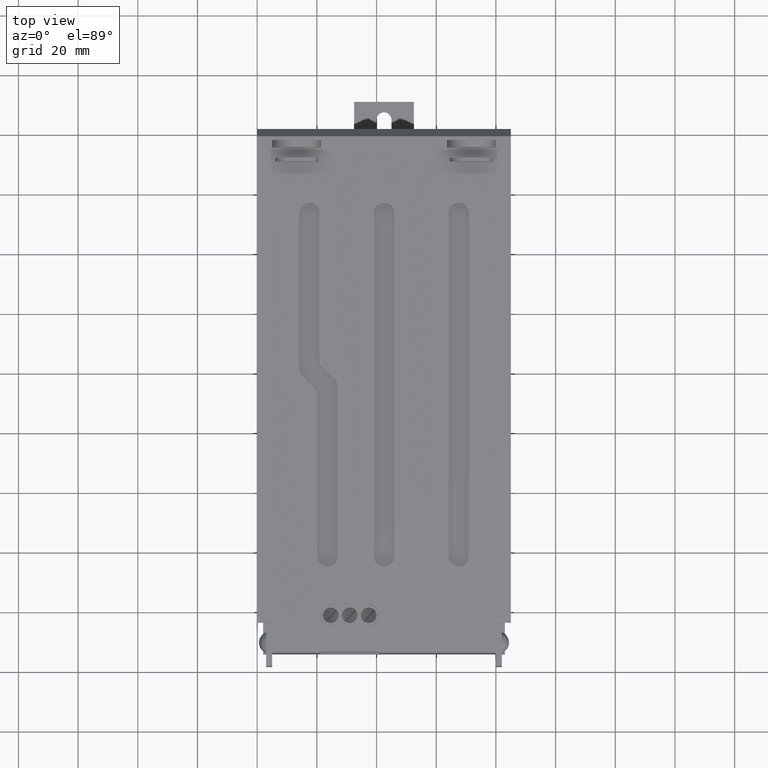
[diagram: clean part render]
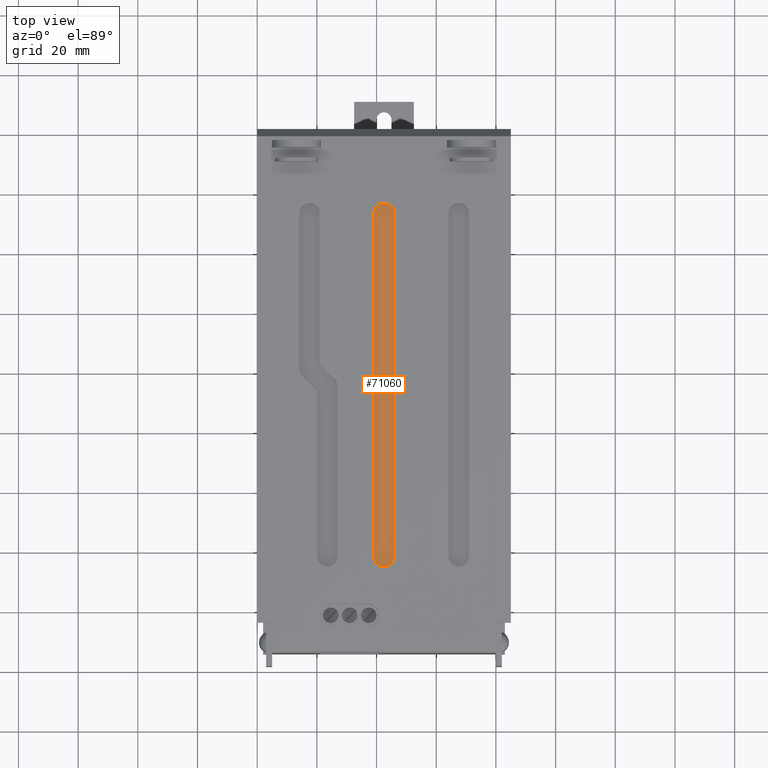
[diagram: same view with one face highlighted and labeled with its STEP entity id]
A machine part, top view. The second image highlights one B-rep face of the part: STEP entity #71060.
In plain terms, the highlighted planar face has unit normal (0, 0, 1).
Its self-contained STEP definition (entity closure, byte-faithful):
#70650=CARTESIAN_POINT('',(-3.62207132992215,106.749777854005,
-0.252928670077858));
#70660=DIRECTION('',(-0.,1.,0.));
#70670=DIRECTION('',(1.,0.,0.));
#70680=AXIS2_PLACEMENT_3D('',#70650,#70660,#70670);
#70690=PLANE('',#70680);
#70700=CARTESIAN_POINT('',(-3.44948974278299,106.749777854005,0.));
#70710=DIRECTION('',(0.,0.,-1.));
#70720=VECTOR('',#70710,1.);
#70730=LINE('',#70700,#70720);
#70740=CARTESIAN_POINT('',(-3.44948974278299,106.749777854005,
-6.74999999699001));
#70750=VERTEX_POINT('',#70740);
#70760=CARTESIAN_POINT('',(-3.44948974278299,106.749777854005,
-121.7500000123));
#70770=VERTEX_POINT('',#70760);
#70780=EDGE_CURVE('',#70750,#70770,#70730,.T.);
#70790=ORIENTED_EDGE('',*,*,#70780,.F.);
#70800=CARTESIAN_POINT('',(8.22085455265409E-15,106.749777854005,-121.75
));
#70810=DIRECTION('',(0.,-1.,0.));
#70820=DIRECTION('',(-1.,0.,0.));
#70830=AXIS2_PLACEMENT_3D('',#70800,#70810,#70820);
#70840=CIRCLE('',#70830,3.44948974278299);
#70850=CARTESIAN_POINT('',(3.44948974278301,106.749777854005,
-121.750000003));
#70860=VERTEX_POINT('',#70850);
#70870=EDGE_CURVE('',#70770,#70860,#70840,.T.);
#70880=ORIENTED_EDGE('',*,*,#70870,.F.);
#70890=CARTESIAN_POINT('',(3.44948974278301,106.749777854005,0.));
#70900=DIRECTION('',(0.,0.,1.));
#70910=VECTOR('',#70900,1.);
#70920=LINE('',#70890,#70910);
#70930=CARTESIAN_POINT('',(3.44948974278301,106.749777854005,
-6.7499999918));
#70940=VERTEX_POINT('',#70930);
#70950=EDGE_CURVE('',#70860,#70940,#70920,.T.);
#70960=ORIENTED_EDGE('',*,*,#70950,.F.);
#70970=CARTESIAN_POINT('',(7.43675954151257E-15,106.749777854005,
-6.75000000000001));
#70980=DIRECTION('',(0.,-1.,0.));
#70990=DIRECTION('',(-1.,0.,0.));
#71000=AXIS2_PLACEMENT_3D('',#70970,#70980,#70990);
#71010=CIRCLE('',#71000,3.449489742783);
#71020=EDGE_CURVE('',#70940,#70750,#71010,.T.);
#71030=ORIENTED_EDGE('',*,*,#71020,.F.);
#71040=EDGE_LOOP('',(#71030,#70960,#70880,#70790));
#71050=FACE_OUTER_BOUND('',#71040,.T.);
#71060=ADVANCED_FACE('',(#71050),#70690,.T.);